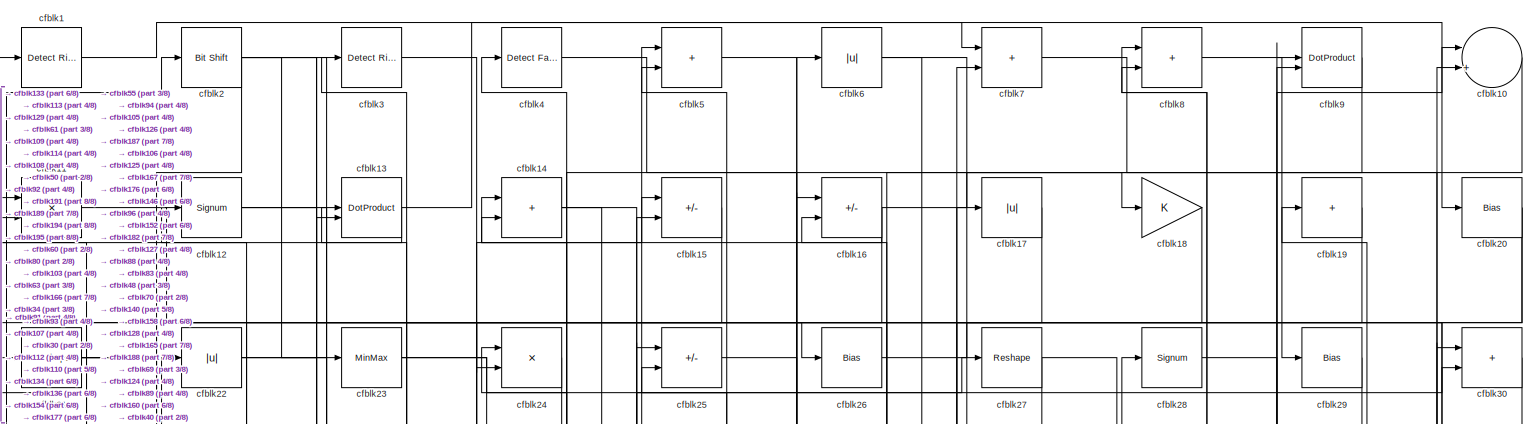
[diagram: root canvas - part 1/8, full width, top band]
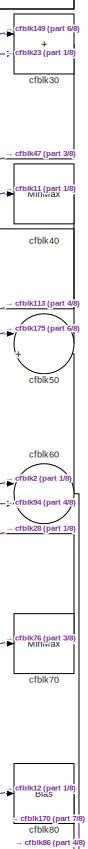
[diagram: root canvas - part 2/8, top right region]
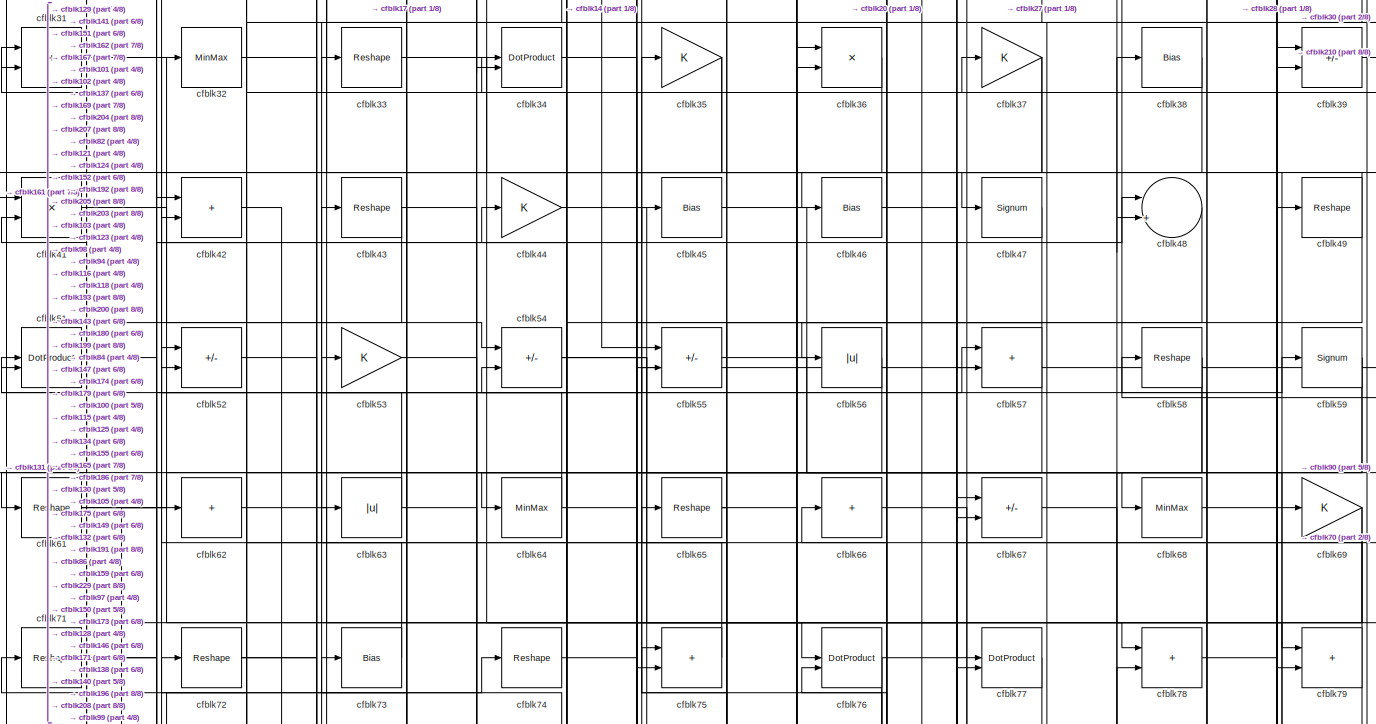
[diagram: root canvas - part 3/8, full width, top band]
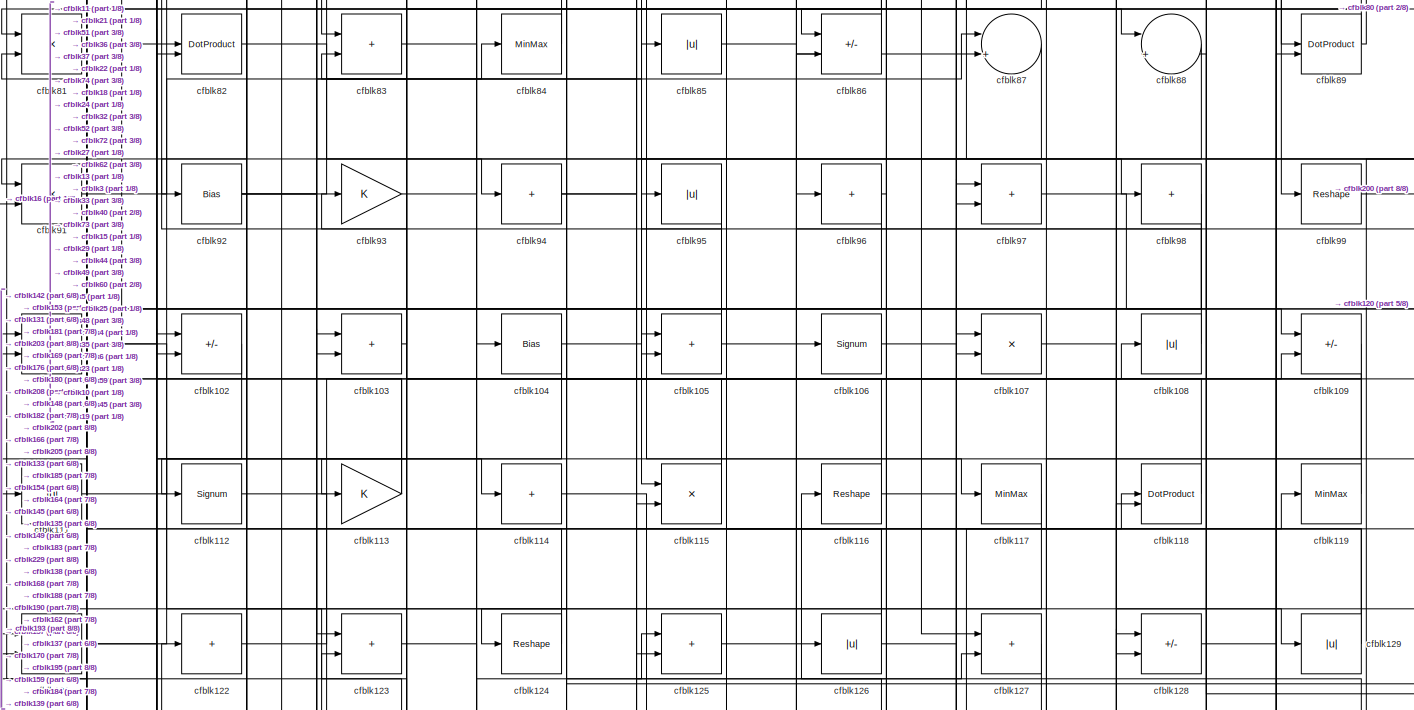
[diagram: root canvas - part 4/8, full width, middle band]
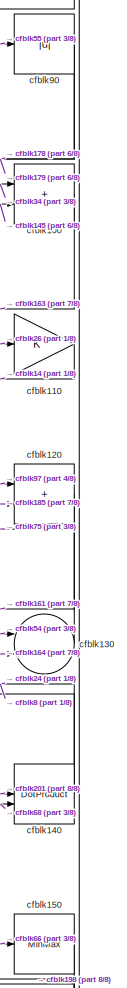
[diagram: root canvas - part 5/8, middle right region]
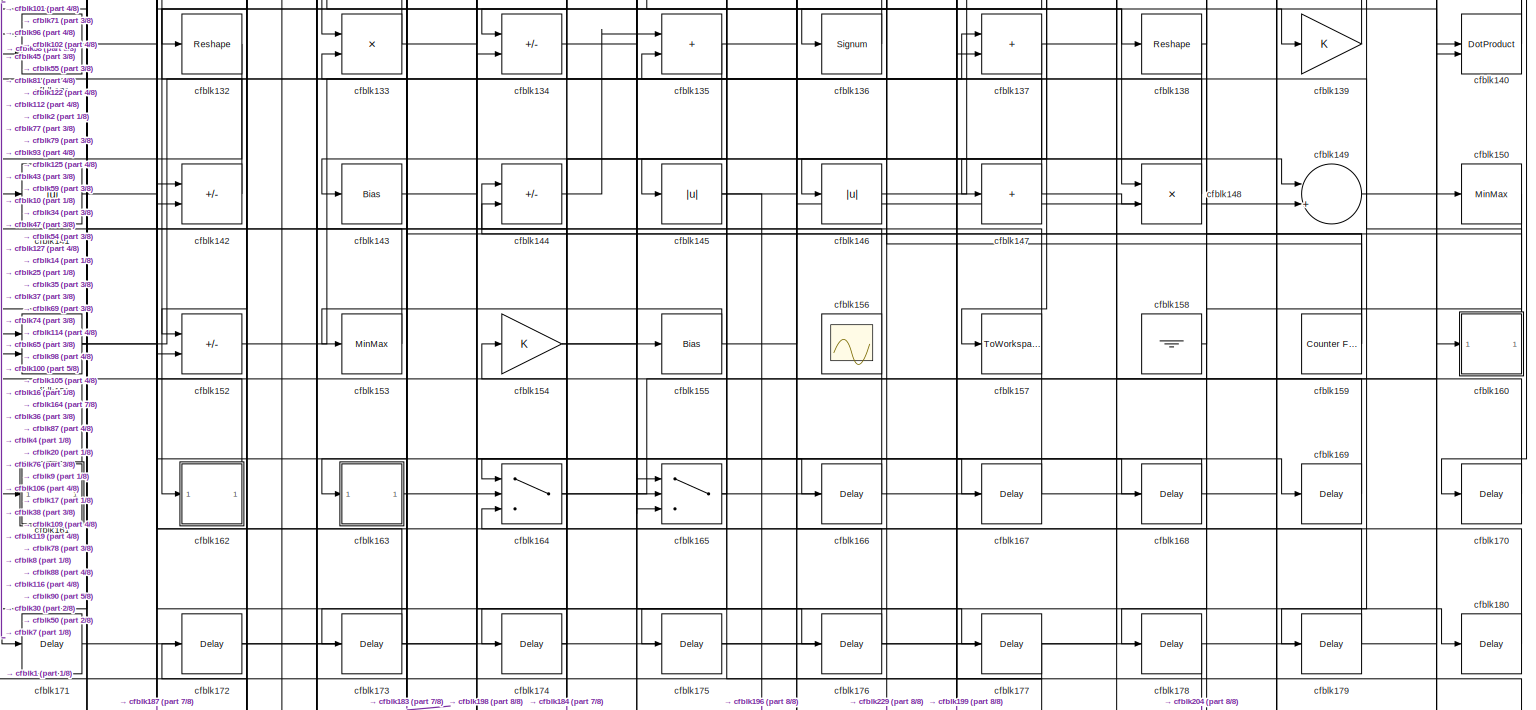
[diagram: root canvas - part 6/8, full width, bottom band]
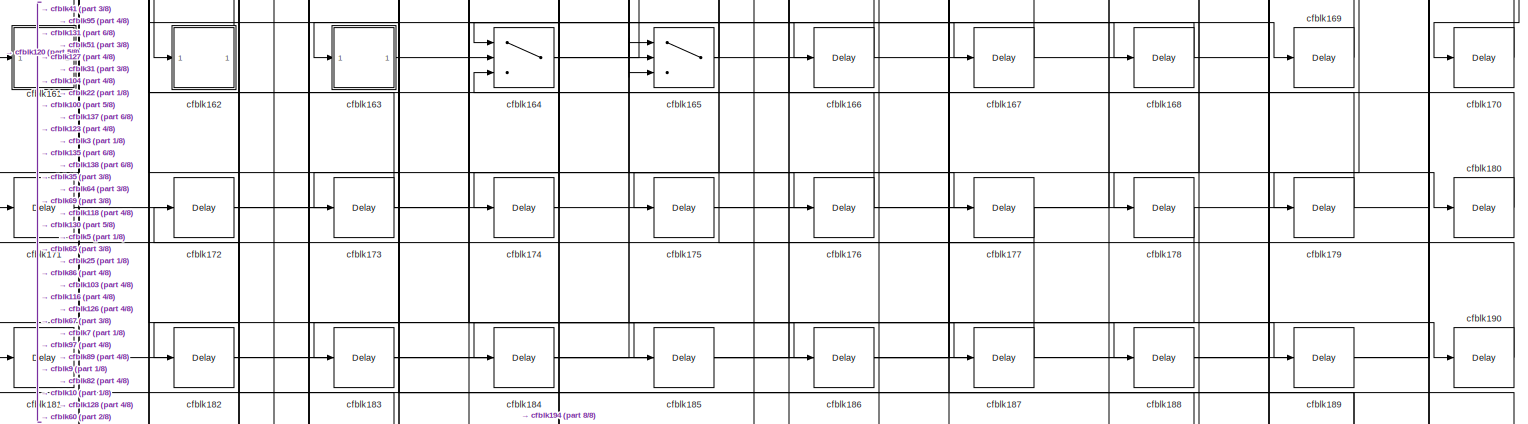
[diagram: root canvas - part 7/8, full width, bottom band]
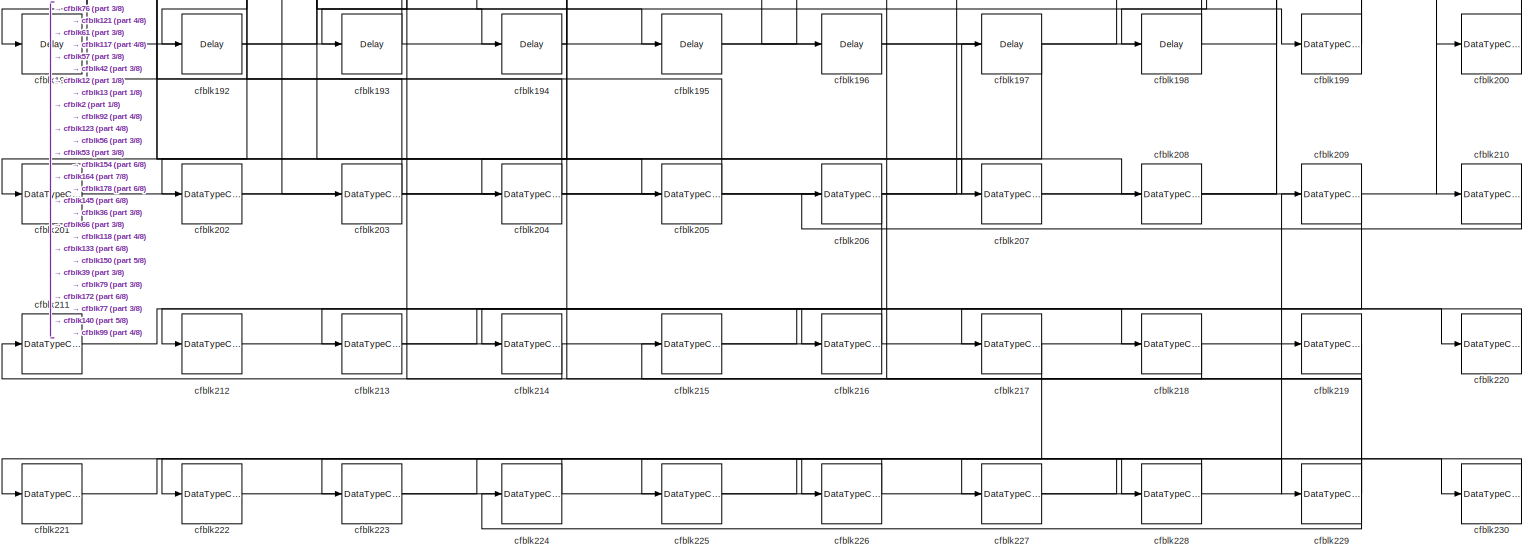
[diagram: root canvas - part 8/8, full width, bottom band]
MODEL slx_cb70a616f78c
KIND model
CONFIG AbsTol = auto
CONFIG EnableMultiTasking = off
CONFIG FixedStep = auto
CONFIG MaxStep = auto
CONFIG MinStep = auto
CONFIG RelTol = 1e-3
CONFIG SampleTimeConstraint = Unconstrained
CONFIG SolverName = VariableStepAuto
CONFIG StartTime = 0.0
CONFIG StopTime = 10.0
BLOCK [Reference] cfblk1  REF=hdlsllib/Logic and Bit
Operations/Detect Rise
Nonnegative
  SourceBlock = hdlsllib/Logic and Bit\nOperations/Detect Rise\nNonnegative
  SourceType = Detect Rise Nonnegative
BLOCK [Sum] cfblk10
  Inputs = |++
BLOCK [Sum] cfblk100
  IconShape = rectangular
BLOCK [Sum] cfblk101
  IconShape = rectangular
BLOCK [Sum] cfblk102
  IconShape = rectangular
  Inputs = +-
BLOCK [Sum] cfblk103
  IconShape = rectangular
BLOCK [Bias] cfblk104
  Bias = 0.0
  SaturateOnIntegerOverflow = off
BLOCK [Sum] cfblk105
  IconShape = rectangular
BLOCK [Signum] cfblk106
BLOCK [Product] cfblk107
  Inputs = */
  RndMeth = Zero
  SaturateOnIntegerOverflow = on
BLOCK [Abs] cfblk108
  SaturateOnIntegerOverflow = off
BLOCK [Sum] cfblk109
  IconShape = rectangular
  Inputs = +-
BLOCK [Product] cfblk11
  Inputs = */
  RndMeth = Zero
  SaturateOnIntegerOverflow = on
BLOCK [Gain] cfblk110
BLOCK [Abs] cfblk111
  SaturateOnIntegerOverflow = off
BLOCK [Signum] cfblk112
BLOCK [Gain] cfblk113
BLOCK [Sum] cfblk114
  IconShape = rectangular
  Inputs = +
BLOCK [Product] cfblk115
  Inputs = */
  RndMeth = Zero
  SaturateOnIntegerOverflow = on
BLOCK [Reshape] cfblk116
BLOCK [MinMax] cfblk117
BLOCK [DotProduct] cfblk118
  OutDataTypeStr = Inherit: Inherit via internal rule
BLOCK [MinMax] cfblk119
BLOCK [Signum] cfblk12
BLOCK [Sum] cfblk120
  IconShape = rectangular
BLOCK [Sum] cfblk121
  IconShape = rectangular
BLOCK [Sum] cfblk122
  IconShape = rectangular
  Inputs = +
BLOCK [Sum] cfblk123
  IconShape = rectangular
BLOCK [Reshape] cfblk124
BLOCK [Sum] cfblk125
  IconShape = rectangular
BLOCK [Abs] cfblk126
  SaturateOnIntegerOverflow = off
BLOCK [Sum] cfblk127
  IconShape = rectangular
BLOCK [Sum] cfblk128
  IconShape = rectangular
  Inputs = +-
BLOCK [Abs] cfblk129
  SaturateOnIntegerOverflow = off
BLOCK [DotProduct] cfblk13
  OutDataTypeStr = Inherit: Inherit via internal rule
BLOCK [Sum] cfblk130
  Inputs = |++
BLOCK [Product] cfblk131
  Inputs = */
  RndMeth = Zero
  SaturateOnIntegerOverflow = on
BLOCK [Reshape] cfblk132
BLOCK [Product] cfblk133
  Inputs = */
  RndMeth = Zero
  SaturateOnIntegerOverflow = on
BLOCK [Sum] cfblk134
  IconShape = rectangular
  Inputs = +-
BLOCK [Sum] cfblk135
  IconShape = rectangular
BLOCK [Signum] cfblk136
BLOCK [Sum] cfblk137
  IconShape = rectangular
BLOCK [Reshape] cfblk138
BLOCK [Gain] cfblk139
BLOCK [Sum] cfblk14
  IconShape = rectangular
BLOCK [DotProduct] cfblk140
  OutDataTypeStr = Inherit: Inherit via internal rule
BLOCK [Abs] cfblk141
  SaturateOnIntegerOverflow = off
BLOCK [Sum] cfblk142
  IconShape = rectangular
  Inputs = +-
BLOCK [Bias] cfblk143
  Bias = 0.0
  SaturateOnIntegerOverflow = off
BLOCK [Sum] cfblk144
  IconShape = rectangular
  Inputs = +-
BLOCK [Abs] cfblk145
  SaturateOnIntegerOverflow = off
BLOCK [Abs] cfblk146
  SaturateOnIntegerOverflow = off
BLOCK [Sum] cfblk147
  IconShape = rectangular
  Inputs = +
BLOCK [Product] cfblk148
  Inputs = */
  RndMeth = Zero
  SaturateOnIntegerOverflow = on
BLOCK [Sum] cfblk149
  Inputs = |++
BLOCK [Sum] cfblk15
  IconShape = rectangular
  Inputs = +-
BLOCK [MinMax] cfblk150
BLOCK [Sum] cfblk151
  IconShape = rectangular
BLOCK [Sum] cfblk152
  IconShape = rectangular
  Inputs = +-
BLOCK [MinMax] cfblk153
BLOCK [Gain] cfblk154
BLOCK [Bias] cfblk155
  Bias = 0.0
  SaturateOnIntegerOverflow = off
BLOCK [Scope] cfblk156
  Floating = on
  NumInputPorts = 1
  ScopeSpecificationString = Simulink.scopes.TimeScopeBlockCfg('CurrentConfiguration', extmgr.ConfigurationSet(extmgr.Configuration('Core','General UI',true,'FigureColor',[0.156862745098039 0.156862745098039 0.156862745098039]),extmgr.Configuration('Core','Source UI',true),extmgr.Configuration('Sources','WiredSimulink',true,'DataLoggingVariableName','ScopeData1','DataLoggingSaveFormat','StructureWithTime','DataLoggingLimitDat...<+2713ch>
BLOCK [ToWorkspace] cfblk157
  MaxDataPoints = inf
  SampleTime = -1
  SaveFormat = Timeseries
  VariableName = simout
BLOCK [Ground] cfblk158
BLOCK [Reference] cfblk159  REF=hdlsllib/Sources/Counter
Free-Running
  SourceBlock = hdlsllib/Sources/Counter\nFree-Running
  SourceType = Counter Free-Running
BLOCK [Sum] cfblk16
  IconShape = rectangular
  Inputs = +-
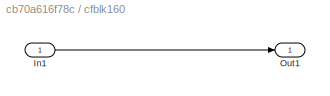
BLOCK [SubSystem] cfblk160
  LibrarySourceBlock = hdlsllib/Ports &\nSubsystems/Subsystem
BLOCK [Inport] cfblk160/In1
BLOCK [Outport] cfblk160/Out1
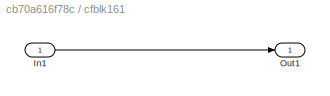
BLOCK [SubSystem] cfblk161
  LibrarySourceBlock = hdlsllib/Ports &\nSubsystems/Subsystem
BLOCK [Inport] cfblk161/In1
BLOCK [Outport] cfblk161/Out1
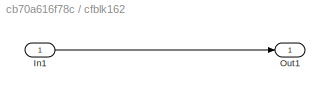
BLOCK [SubSystem] cfblk162
  LibrarySourceBlock = hdlsllib/Ports &\nSubsystems/Subsystem
BLOCK [Inport] cfblk162/In1
BLOCK [Outport] cfblk162/Out1
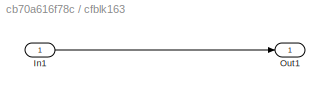
BLOCK [SubSystem] cfblk163
  LibrarySourceBlock = hdlsllib/Ports &\nSubsystems/Subsystem
BLOCK [Inport] cfblk163/In1
BLOCK [Outport] cfblk163/Out1
BLOCK [Switch] cfblk164
  InputSameDT = off
  SaturateOnIntegerOverflow = off
BLOCK [Switch] cfblk165
  InputSameDT = off
  SaturateOnIntegerOverflow = off
BLOCK [Delay] cfblk166
  InputPortMap = u0
  SampleTime = 1
BLOCK [Delay] cfblk167
  InputPortMap = u0
  SampleTime = 1
BLOCK [Delay] cfblk168
  InputPortMap = u0
  SampleTime = 1
BLOCK [Delay] cfblk169
  InputPortMap = u0
  SampleTime = 1
BLOCK [Abs] cfblk17
  SaturateOnIntegerOverflow = off
BLOCK [Delay] cfblk170
  InputPortMap = u0
  SampleTime = 1
BLOCK [Delay] cfblk171
  InputPortMap = u0
  SampleTime = 1
BLOCK [Delay] cfblk172
  InputPortMap = u0
  SampleTime = 1
BLOCK [Delay] cfblk173
  InputPortMap = u0
  SampleTime = 1
BLOCK [Delay] cfblk174
  InputPortMap = u0
  SampleTime = 1
BLOCK [Delay] cfblk175
  InputPortMap = u0
  SampleTime = 1
BLOCK [Delay] cfblk176
  InputPortMap = u0
  SampleTime = 1
BLOCK [Delay] cfblk177
  InputPortMap = u0
  SampleTime = 1
BLOCK [Delay] cfblk178
  InputPortMap = u0
  SampleTime = 1
BLOCK [Delay] cfblk179
  InputPortMap = u0
  SampleTime = 1
BLOCK [Gain] cfblk18
BLOCK [Delay] cfblk180
  InputPortMap = u0
  SampleTime = 1
BLOCK [Delay] cfblk181
  InputPortMap = u0
  SampleTime = 1
BLOCK [Delay] cfblk182
  InputPortMap = u0
  SampleTime = 1
BLOCK [Delay] cfblk183
  InputPortMap = u0
  SampleTime = 1
BLOCK [Delay] cfblk184
  InputPortMap = u0
  SampleTime = 1
BLOCK [Delay] cfblk185
  InputPortMap = u0
  SampleTime = 1
BLOCK [Delay] cfblk186
  InputPortMap = u0
  SampleTime = 1
BLOCK [Delay] cfblk187
  InputPortMap = u0
  SampleTime = 1
BLOCK [Delay] cfblk188
  InputPortMap = u0
  SampleTime = 1
BLOCK [Delay] cfblk189
  InputPortMap = u0
  SampleTime = 1
BLOCK [Sum] cfblk19
  IconShape = rectangular
  Inputs = +
BLOCK [Delay] cfblk190
  InputPortMap = u0
  SampleTime = 1
BLOCK [Delay] cfblk191
  InputPortMap = u0
  SampleTime = 1
BLOCK [Delay] cfblk192
  InputPortMap = u0
  SampleTime = 1
BLOCK [Delay] cfblk193
  InputPortMap = u0
  SampleTime = 1
BLOCK [Delay] cfblk194
  InputPortMap = u0
  SampleTime = 1
BLOCK [Delay] cfblk195
  InputPortMap = u0
  SampleTime = 1
BLOCK [Delay] cfblk196
  InputPortMap = u0
  SampleTime = 1
BLOCK [Delay] cfblk197
  InputPortMap = u0
  SampleTime = 1
BLOCK [Delay] cfblk198
  InputPortMap = u0
  SampleTime = 1
BLOCK [DataTypeConversion] cfblk199
  RndMeth = Floor
  SaturateOnIntegerOverflow = off
BLOCK [Reference] cfblk2  REF=hdlsllib/Logic and Bit
Operations/Bit Shift
  SourceBlock = hdlsllib/Logic and Bit\nOperations/Bit Shift
  SourceType = Bit Shift
BLOCK [Bias] cfblk20
  Bias = 0.0
  SaturateOnIntegerOverflow = off
BLOCK [DataTypeConversion] cfblk200
  OutDataTypeStr = uint8
  RndMeth = Floor
  SaturateOnIntegerOverflow = off
BLOCK [DataTypeConversion] cfblk201
  OutDataTypeStr = uint8
  RndMeth = Floor
  SaturateOnIntegerOverflow = off
BLOCK [DataTypeConversion] cfblk202
  OutDataTypeStr = uint8
  RndMeth = Floor
  SaturateOnIntegerOverflow = off
BLOCK [DataTypeConversion] cfblk203
  RndMeth = Floor
  SaturateOnIntegerOverflow = off
BLOCK [DataTypeConversion] cfblk204
  OutDataTypeStr = uint8
  RndMeth = Floor
  SaturateOnIntegerOverflow = off
BLOCK [DataTypeConversion] cfblk205
  OutDataTypeStr = uint8
  RndMeth = Floor
  SaturateOnIntegerOverflow = off
BLOCK [DataTypeConversion] cfblk206
  RndMeth = Floor
  SaturateOnIntegerOverflow = off
BLOCK [DataTypeConversion] cfblk207
  OutDataTypeStr = uint8
  RndMeth = Floor
  SaturateOnIntegerOverflow = off
BLOCK [DataTypeConversion] cfblk208
  OutDataTypeStr = uint8
  RndMeth = Floor
  SaturateOnIntegerOverflow = off
BLOCK [DataTypeConversion] cfblk209
  RndMeth = Floor
  SaturateOnIntegerOverflow = off
BLOCK [Reshape] cfblk21
BLOCK [DataTypeConversion] cfblk210
  OutDataTypeStr = uint8
  RndMeth = Floor
  SaturateOnIntegerOverflow = off
BLOCK [DataTypeConversion] cfblk211
  RndMeth = Floor
  SaturateOnIntegerOverflow = off
BLOCK [DataTypeConversion] cfblk212
  OutDataTypeStr = uint8
  RndMeth = Floor
  SaturateOnIntegerOverflow = off
BLOCK [DataTypeConversion] cfblk213
  RndMeth = Floor
  SaturateOnIntegerOverflow = off
BLOCK [DataTypeConversion] cfblk214
  OutDataTypeStr = uint8
  RndMeth = Floor
  SaturateOnIntegerOverflow = off
BLOCK [DataTypeConversion] cfblk215
  RndMeth = Floor
  SaturateOnIntegerOverflow = off
BLOCK [DataTypeConversion] cfblk216
  OutDataTypeStr = uint8
  RndMeth = Floor
  SaturateOnIntegerOverflow = off
BLOCK [DataTypeConversion] cfblk217
  RndMeth = Floor
  SaturateOnIntegerOverflow = off
BLOCK [DataTypeConversion] cfblk218
  OutDataTypeStr = uint8
  RndMeth = Floor
  SaturateOnIntegerOverflow = off
BLOCK [DataTypeConversion] cfblk219
  RndMeth = Floor
  SaturateOnIntegerOverflow = off
BLOCK [Abs] cfblk22
  SaturateOnIntegerOverflow = off
BLOCK [DataTypeConversion] cfblk220
  OutDataTypeStr = uint8
  RndMeth = Floor
  SaturateOnIntegerOverflow = off
BLOCK [DataTypeConversion] cfblk221
  RndMeth = Floor
  SaturateOnIntegerOverflow = off
BLOCK [DataTypeConversion] cfblk222
  OutDataTypeStr = uint8
  RndMeth = Floor
  SaturateOnIntegerOverflow = off
BLOCK [DataTypeConversion] cfblk223
  RndMeth = Floor
  SaturateOnIntegerOverflow = off
BLOCK [DataTypeConversion] cfblk224
  OutDataTypeStr = uint8
  RndMeth = Floor
  SaturateOnIntegerOverflow = off
BLOCK [DataTypeConversion] cfblk225
  RndMeth = Floor
  SaturateOnIntegerOverflow = off
BLOCK [DataTypeConversion] cfblk226
  OutDataTypeStr = uint8
  RndMeth = Floor
  SaturateOnIntegerOverflow = off
BLOCK [DataTypeConversion] cfblk227
  RndMeth = Floor
  SaturateOnIntegerOverflow = off
BLOCK [DataTypeConversion] cfblk228
  OutDataTypeStr = uint8
  RndMeth = Floor
  SaturateOnIntegerOverflow = off
BLOCK [DataTypeConversion] cfblk229
  RndMeth = Floor
  SaturateOnIntegerOverflow = off
BLOCK [MinMax] cfblk23
BLOCK [DataTypeConversion] cfblk230
  OutDataTypeStr = uint8
  RndMeth = Floor
  SaturateOnIntegerOverflow = off
BLOCK [Product] cfblk24
  Inputs = */
  RndMeth = Zero
  SaturateOnIntegerOverflow = on
BLOCK [Sum] cfblk25
  IconShape = rectangular
  Inputs = +-
BLOCK [Bias] cfblk26
  Bias = 0.0
  SaturateOnIntegerOverflow = off
BLOCK [Reshape] cfblk27
BLOCK [Signum] cfblk28
BLOCK [Bias] cfblk29
  Bias = 0.0
  SaturateOnIntegerOverflow = off
BLOCK [Reference] cfblk3  REF=hdlsllib/Logic and Bit
Operations/Detect Rise
Positive
  SourceBlock = hdlsllib/Logic and Bit\nOperations/Detect Rise\nPositive
  SourceType = Detect Rise Positive
BLOCK [Sum] cfblk30
  IconShape = rectangular
BLOCK [Sum] cfblk31
  IconShape = rectangular
BLOCK [MinMax] cfblk32
BLOCK [Reshape] cfblk33
BLOCK [DotProduct] cfblk34
  OutDataTypeStr = Inherit: Inherit via internal rule
BLOCK [Gain] cfblk35
BLOCK [Product] cfblk36
  Inputs = */
  RndMeth = Zero
  SaturateOnIntegerOverflow = on
BLOCK [Gain] cfblk37
BLOCK [Bias] cfblk38
  Bias = 0.0
  SaturateOnIntegerOverflow = off
BLOCK [Sum] cfblk39
  IconShape = rectangular
  Inputs = +-
BLOCK [Reference] cfblk4  REF=hdlsllib/Logic and Bit
Operations/Detect Fall
Nonpositive
  SourceBlock = hdlsllib/Logic and Bit\nOperations/Detect Fall\nNonpositive
  SourceType = Detect Fall Nonpositive
BLOCK [MinMax] cfblk40
BLOCK [Product] cfblk41
  Inputs = */
  RndMeth = Zero
  SaturateOnIntegerOverflow = on
BLOCK [Sum] cfblk42
  IconShape = rectangular
BLOCK [Reshape] cfblk43
BLOCK [Gain] cfblk44
BLOCK [Bias] cfblk45
  Bias = 0.0
  SaturateOnIntegerOverflow = off
BLOCK [Bias] cfblk46
  Bias = 0.0
  SaturateOnIntegerOverflow = off
BLOCK [Signum] cfblk47
BLOCK [Sum] cfblk48
  Inputs = |++
BLOCK [Reshape] cfblk49
BLOCK [Sum] cfblk5
  IconShape = rectangular
BLOCK [Sum] cfblk50
  Inputs = |++
BLOCK [DotProduct] cfblk51
  OutDataTypeStr = Inherit: Inherit via internal rule
BLOCK [Sum] cfblk52
  IconShape = rectangular
  Inputs = +-
BLOCK [Gain] cfblk53
BLOCK [Sum] cfblk54
  IconShape = rectangular
  Inputs = +-
BLOCK [Sum] cfblk55
  IconShape = rectangular
  Inputs = +-
BLOCK [Abs] cfblk56
  SaturateOnIntegerOverflow = off
BLOCK [Sum] cfblk57
  IconShape = rectangular
BLOCK [Reshape] cfblk58
BLOCK [Signum] cfblk59
BLOCK [Abs] cfblk6
  SaturateOnIntegerOverflow = off
BLOCK [Sum] cfblk60
  Inputs = |++
BLOCK [Reshape] cfblk61
BLOCK [Sum] cfblk62
  IconShape = rectangular
  Inputs = +
BLOCK [Abs] cfblk63
  SaturateOnIntegerOverflow = off
BLOCK [MinMax] cfblk64
BLOCK [Reshape] cfblk65
BLOCK [Sum] cfblk66
  IconShape = rectangular
  Inputs = +
BLOCK [Sum] cfblk67
  IconShape = rectangular
  Inputs = +-
BLOCK [MinMax] cfblk68
BLOCK [Gain] cfblk69
BLOCK [Sum] cfblk7
  IconShape = rectangular
BLOCK [MinMax] cfblk70
BLOCK [Reshape] cfblk71
BLOCK [Reshape] cfblk72
BLOCK [Bias] cfblk73
  Bias = 0.0
  SaturateOnIntegerOverflow = off
BLOCK [Reshape] cfblk74
BLOCK [Sum] cfblk75
  IconShape = rectangular
BLOCK [DotProduct] cfblk76
  OutDataTypeStr = Inherit: Inherit via internal rule
BLOCK [DotProduct] cfblk77
  OutDataTypeStr = Inherit: Inherit via internal rule
BLOCK [Sum] cfblk78
  IconShape = rectangular
BLOCK [Sum] cfblk79
  IconShape = rectangular
BLOCK [Sum] cfblk8
  IconShape = rectangular
BLOCK [Bias] cfblk80
  Bias = 0.0
  SaturateOnIntegerOverflow = off
BLOCK [Product] cfblk81
  Inputs = */
  RndMeth = Zero
  SaturateOnIntegerOverflow = on
BLOCK [DotProduct] cfblk82
  OutDataTypeStr = Inherit: Inherit via internal rule
BLOCK [Sum] cfblk83
  IconShape = rectangular
BLOCK [MinMax] cfblk84
BLOCK [Abs] cfblk85
  SaturateOnIntegerOverflow = off
BLOCK [Sum] cfblk86
  IconShape = rectangular
  Inputs = +-
BLOCK [Sum] cfblk87
  Inputs = |++
BLOCK [Sum] cfblk88
  Inputs = |++
BLOCK [DotProduct] cfblk89
  OutDataTypeStr = Inherit: Inherit via internal rule
BLOCK [DotProduct] cfblk9
  OutDataTypeStr = Inherit: Inherit via internal rule
BLOCK [Abs] cfblk90
  SaturateOnIntegerOverflow = off
BLOCK [Product] cfblk91
  Inputs = */
  RndMeth = Zero
  SaturateOnIntegerOverflow = on
BLOCK [Bias] cfblk92
  Bias = 0.0
  SaturateOnIntegerOverflow = off
BLOCK [Gain] cfblk93
BLOCK [Sum] cfblk94
  IconShape = rectangular
  Inputs = +
BLOCK [Abs] cfblk95
  SaturateOnIntegerOverflow = off
BLOCK [Sum] cfblk96
  IconShape = rectangular
  Inputs = +
BLOCK [Sum] cfblk97
  IconShape = rectangular
BLOCK [Sum] cfblk98
  IconShape = rectangular
  Inputs = +
BLOCK [Reshape] cfblk99
LINE cfblk100:1 -> cfblk163:1
NET cfblk101:1 -> cfblk109:2, cfblk133:1, cfblk62:1
LINE cfblk102:1 -> cfblk142:2
LINE cfblk103:1 -> cfblk3:1
NET cfblk104:1 -> cfblk182:1, cfblk95:1
NET cfblk105:1 -> cfblk149:2, cfblk5:1
LINE cfblk106:1 -> cfblk138:1
LINE cfblk107:1 -> cfblk129:1
LINE cfblk108:1 -> cfblk22:1
NET cfblk109:1 -> cfblk105:2, cfblk157:1
LINE cfblk10:1 -> cfblk134:1
LINE cfblk110:1 -> cfblk14:1
LINE cfblk111:1 -> cfblk117:1
LINE cfblk112:1 -> cfblk148:1
NET cfblk113:1 -> cfblk21:1, cfblk81:2
LINE cfblk114:1 -> cfblk139:1
LINE cfblk115:1 -> cfblk44:1
NET cfblk116:1 -> cfblk188:1, cfblk73:1
LINE cfblk117:1 -> cfblk202:1
LINE cfblk118:1 -> cfblk33:1
LINE cfblk119:1 -> cfblk83:2
LINE cfblk11:1 -> cfblk40:1
LINE cfblk120:1 -> cfblk161:1
NET cfblk121:1 -> cfblk208:1, cfblk74:1
LINE cfblk122:1 -> cfblk108:1
LINE cfblk123:1 -> cfblk185:1
LINE cfblk124:1 -> cfblk72:1
LINE cfblk125:1 -> cfblk6:1
NET cfblk126:1 -> cfblk13:1, cfblk168:1, cfblk25:2
LINE cfblk127:1 -> cfblk162:1
LINE cfblk128:1 -> cfblk10:1
NET cfblk129:1 -> cfblk11:1, cfblk51:2
NET cfblk12:1 -> cfblk194:1, cfblk80:1
LINE cfblk130:1 -> cfblk75:1
LINE cfblk131:1 -> cfblk187:1
LINE cfblk132:1 -> cfblk171:1
NET cfblk133:1 -> cfblk125:1, cfblk2:1
LINE cfblk134:1 -> cfblk37:1
NET cfblk135:1 -> cfblk164:1, cfblk87:2
LINE cfblk136:1 -> cfblk4:1
NET cfblk137:1 -> cfblk119:1, cfblk183:1
NET cfblk138:1 -> cfblk184:1, cfblk58:1
LINE cfblk139:1 -> cfblk116:1
NET cfblk13:1 -> cfblk11:2, cfblk20:1
NET cfblk140:1 -> cfblk24:1, cfblk8:2
LINE cfblk141:1 -> cfblk45:1
LINE cfblk142:1 -> cfblk101:2
LINE cfblk143:1 -> cfblk59:1
LINE cfblk144:1 -> cfblk135:1
NET cfblk145:1 -> cfblk100:2, cfblk196:1
LINE cfblk146:1 -> cfblk38:1
NET cfblk147:1 -> cfblk148:2, cfblk34:1
LINE cfblk148:1 -> cfblk122:1
LINE cfblk149:1 -> cfblk30:1
NET cfblk14:1 -> cfblk177:1, cfblk55:1
LINE cfblk150:1 -> cfblk198:1
NET cfblk151:1 -> cfblk137:1, cfblk55:2, cfblk71:1
LINE cfblk152:1 -> cfblk17:1
LINE cfblk153:1 -> cfblk101:1
NET cfblk154:1 -> cfblk127:2, cfblk25:1
NET cfblk155:1 -> cfblk153:1, cfblk36:1
LINE cfblk158:1 -> cfblk8:1
NET cfblk159:1 -> cfblk76:2, cfblk88:2, cfblk93:1
LINE cfblk15:1 -> cfblk61:1
LINE cfblk160/In1:1 -> cfblk160/Out1:1
NET cfblk160:1 -> cfblk135:2, cfblk144:1
LINE cfblk161/In1:1 -> cfblk161/Out1:1
LINE cfblk161:1 -> cfblk41:1
LINE cfblk162/In1:1 -> cfblk162/Out1:1
LINE cfblk162:1 -> cfblk31:1
LINE cfblk163/In1:1 -> cfblk163/Out1:1
LINE cfblk163:1 -> cfblk190:1
NET cfblk164:1 -> cfblk118:1, cfblk130:2
NET cfblk165:1 -> cfblk65:1, cfblk9:1
LINE cfblk166:1 -> cfblk103:1
LINE cfblk167:1 -> cfblk41:2
LINE cfblk168:1 -> cfblk164:2
LINE cfblk169:1 -> cfblk82:1
NET cfblk16:1 -> cfblk14:2, cfblk18:1, cfblk91:2
LINE cfblk170:1 -> cfblk128:1
LINE cfblk171:1 -> cfblk78:2
LINE cfblk172:1 -> cfblk134:2
LINE cfblk173:1 -> cfblk142:1
LINE cfblk174:1 -> cfblk144:2
LINE cfblk175:1 -> cfblk50:1
LINE cfblk176:1 -> cfblk16:1
LINE cfblk177:1 -> cfblk1:1
LINE cfblk178:1 -> cfblk204:1
LINE cfblk179:1 -> cfblk54:2
LINE cfblk17:1 -> cfblk63:1
LINE cfblk180:1 -> cfblk102:1
LINE cfblk181:1 -> cfblk165:1
LINE cfblk182:1 -> cfblk7:2
LINE cfblk183:1 -> cfblk86:2
LINE cfblk184:1 -> cfblk89:2
LINE cfblk185:1 -> cfblk120:2
LINE cfblk186:1 -> cfblk67:1
LINE cfblk187:1 -> cfblk5:2
LINE cfblk188:1 -> cfblk9:2
LINE cfblk189:1 -> cfblk10:2
LINE cfblk18:1 -> cfblk92:1
LINE cfblk190:1 -> cfblk97:1
LINE cfblk191:1 -> cfblk13:2
LINE cfblk192:1 -> cfblk36:2
LINE cfblk193:1 -> cfblk121:1
LINE cfblk194:1 -> cfblk164:3
LINE cfblk195:1 -> cfblk118:2
LINE cfblk196:1 -> cfblk79:2
LINE cfblk197:1 -> cfblk201:1
LINE cfblk198:1 -> cfblk133:2
NET cfblk199:1 -> cfblk172:1, cfblk77:1
LINE cfblk19:1 -> cfblk107:2
LINE cfblk1:1 -> cfblk7:1
LINE cfblk200:1 -> cfblk53:1
LINE cfblk201:1 -> cfblk140:1
LINE cfblk202:1 -> cfblk197:1
NET cfblk203:1 -> cfblk121:2, cfblk77:2
LINE cfblk204:1 -> cfblk42:1
LINE cfblk205:1 -> cfblk42:2
LINE cfblk206:1 -> cfblk212:1
LINE cfblk207:1 -> cfblk39:1
LINE cfblk208:1 -> cfblk39:2
LINE cfblk209:1 -> cfblk214:1
NET cfblk20:1 -> cfblk136:1, cfblk34:2
LINE cfblk210:1 -> cfblk206:1
LINE cfblk211:1 -> cfblk216:1
LINE cfblk212:1 -> cfblk209:1
LINE cfblk213:1 -> cfblk218:1
LINE cfblk214:1 -> cfblk211:1
LINE cfblk215:1 -> cfblk220:1
LINE cfblk216:1 -> cfblk213:1
LINE cfblk217:1 -> cfblk222:1
LINE cfblk218:1 -> cfblk215:1
LINE cfblk219:1 -> cfblk224:1
NET cfblk21:1 -> cfblk109:1, cfblk114:1, cfblk26:1
LINE cfblk220:1 -> cfblk217:1
LINE cfblk221:1 -> cfblk226:1
LINE cfblk222:1 -> cfblk219:1
LINE cfblk223:1 -> cfblk228:1
LINE cfblk224:1 -> cfblk221:1
LINE cfblk225:1 -> cfblk230:1
LINE cfblk226:1 -> cfblk223:1
LINE cfblk227:1 -> cfblk229:1
LINE cfblk228:1 -> cfblk225:1
NET cfblk229:1 -> cfblk123:2, cfblk154:1, cfblk66:1
NET cfblk22:1 -> cfblk189:1, cfblk89:1
LINE cfblk230:1 -> cfblk227:1
NET cfblk23:1 -> cfblk107:1, cfblk30:2
LINE cfblk24:1 -> cfblk112:1
LINE cfblk25:1 -> cfblk167:1
LINE cfblk26:1 -> cfblk110:1
NET cfblk27:1 -> cfblk48:2, cfblk83:1
LINE cfblk28:1 -> cfblk69:1
LINE cfblk29:1 -> cfblk124:1
NET cfblk2:1 -> cfblk152:2, cfblk195:1, cfblk23:1, cfblk24:2, cfblk60:1
LINE cfblk30:1 -> cfblk47:1
LINE cfblk31:1 -> cfblk78:1
LINE cfblk32:1 -> cfblk103:2
LINE cfblk33:1 -> cfblk97:2
LINE cfblk34:1 -> cfblk100:1
NET cfblk35:1 -> cfblk152:1, cfblk165:3
LINE cfblk36:1 -> cfblk102:2
NET cfblk37:1 -> cfblk151:2, cfblk82:2
LINE cfblk38:1 -> cfblk147:1
LINE cfblk39:1 -> cfblk210:1
LINE cfblk3:1 -> cfblk166:1
LINE cfblk40:1 -> cfblk113:1
LINE cfblk41:1 -> cfblk54:1
LINE cfblk42:1 -> cfblk203:1
NET cfblk43:1 -> cfblk151:1, cfblk180:1
LINE cfblk44:1 -> cfblk76:1
LINE cfblk45:1 -> cfblk99:1
LINE cfblk46:1 -> cfblk57:2
LINE cfblk47:1 -> cfblk174:1
LINE cfblk48:1 -> cfblk105:1
NET cfblk49:1 -> cfblk115:2, cfblk46:1
LINE cfblk4:1 -> cfblk96:1
LINE cfblk50:1 -> cfblk12:1
LINE cfblk51:1 -> cfblk169:1
LINE cfblk52:1 -> cfblk123:1
LINE cfblk53:1 -> cfblk199:1
NET cfblk54:1 -> cfblk130:1, cfblk67:2
LINE cfblk55:1 -> cfblk90:1
LINE cfblk56:1 -> cfblk193:1
NET cfblk57:1 -> cfblk192:1, cfblk56:1
NET cfblk58:1 -> cfblk131:2, cfblk64:1
NET cfblk59:1 -> cfblk125:2, cfblk128:2
LINE cfblk5:1 -> cfblk106:1
NET cfblk60:1 -> cfblk170:1, cfblk50:2
NET cfblk61:1 -> cfblk207:1, cfblk68:1
LINE cfblk62:1 -> cfblk94:1
NET cfblk63:1 -> cfblk31:2, cfblk75:2
NET cfblk64:1 -> cfblk186:1, cfblk52:1
NET cfblk65:1 -> cfblk149:1, cfblk175:1
LINE cfblk66:1 -> cfblk150:1
LINE cfblk67:1 -> cfblk79:1
LINE cfblk68:1 -> cfblk140:2
NET cfblk69:1 -> cfblk141:1, cfblk165:2
NET cfblk6:1 -> cfblk127:1, cfblk88:1
LINE cfblk70:1 -> cfblk28:1
NET cfblk71:1 -> cfblk137:2, cfblk48:1
NET cfblk72:1 -> cfblk57:1, cfblk98:1
LINE cfblk73:1 -> cfblk43:1
LINE cfblk74:1 -> cfblk155:1
LINE cfblk75:1 -> cfblk32:1
NET cfblk76:1 -> cfblk132:1, cfblk191:1, cfblk70:1
LINE cfblk77:1 -> cfblk173:1
LINE cfblk78:1 -> cfblk49:1
NET cfblk79:1 -> cfblk143:1, cfblk52:2
LINE cfblk7:1 -> cfblk160:1
LINE cfblk80:1 -> cfblk86:1
LINE cfblk81:1 -> cfblk176:1
LINE cfblk82:1 -> cfblk85:1
LINE cfblk83:1 -> cfblk104:1
LINE cfblk84:1 -> cfblk51:1
LINE cfblk85:1 -> cfblk126:1
LINE cfblk86:1 -> cfblk35:1
LINE cfblk87:1 -> cfblk115:1
LINE cfblk88:1 -> cfblk91:1
NET cfblk89:1 -> cfblk19:1, cfblk81:1
LINE cfblk8:1 -> cfblk29:1
NET cfblk90:1 -> cfblk178:1, cfblk179:1
LINE cfblk91:1 -> cfblk15:2
NET cfblk92:1 -> cfblk205:1, cfblk84:1, cfblk87:1
LINE cfblk93:1 -> cfblk15:1
NET cfblk94:1 -> cfblk27:1, cfblk60:2
LINE cfblk95:1 -> cfblk181:1
NET cfblk96:1 -> cfblk131:1, cfblk16:2
LINE cfblk97:1 -> cfblk120:1
NET cfblk98:1 -> cfblk111:1, cfblk145:1
LINE cfblk99:1 -> cfblk200:1
LINE cfblk9:1 -> cfblk146:1
note: NET lines group one-source signal fan-out (src -> all destinations, sorted); 1:1 wires keep LINE
